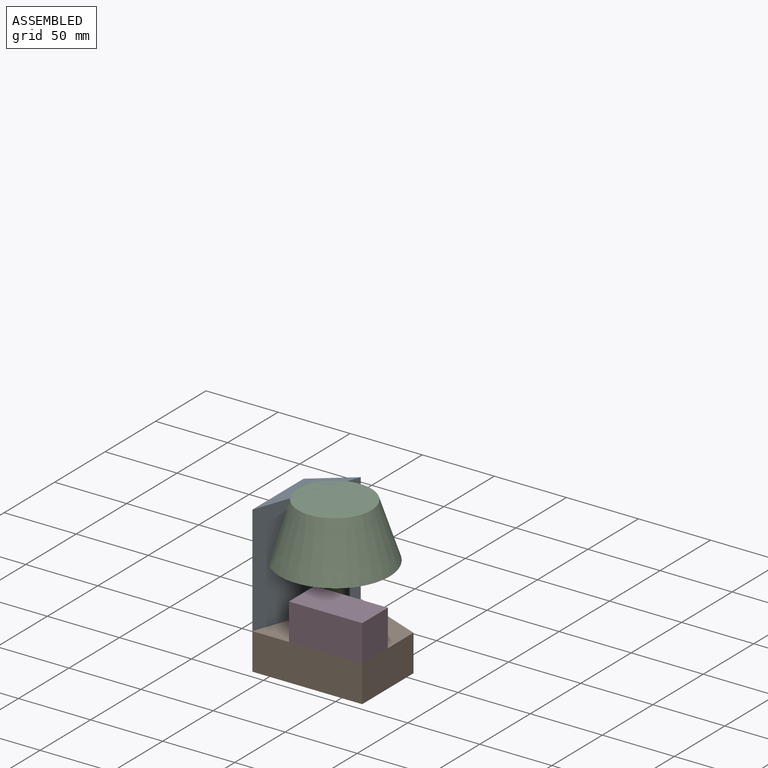
[diagram: assembled view]
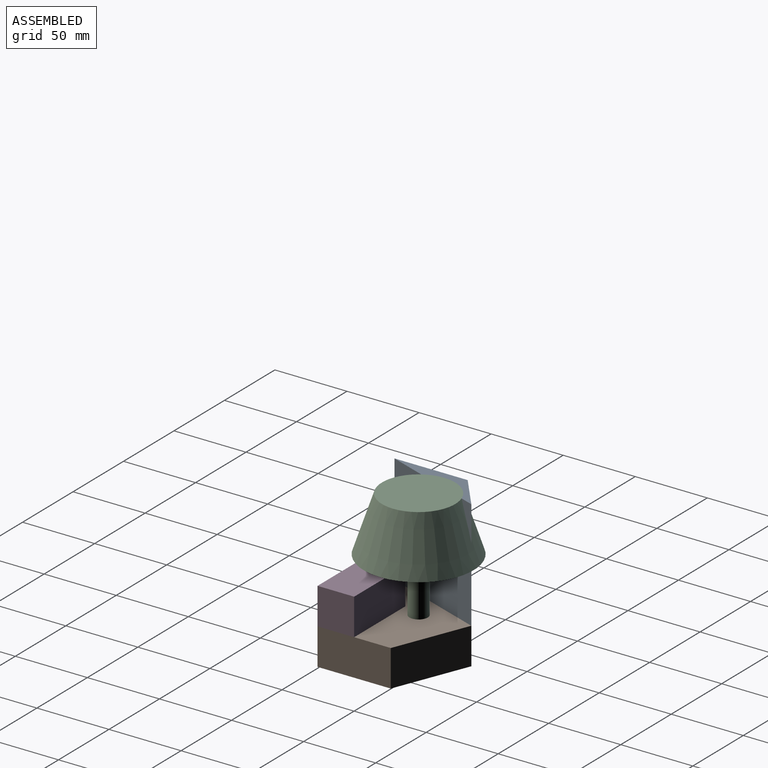
[diagram: assembled view, second angle]
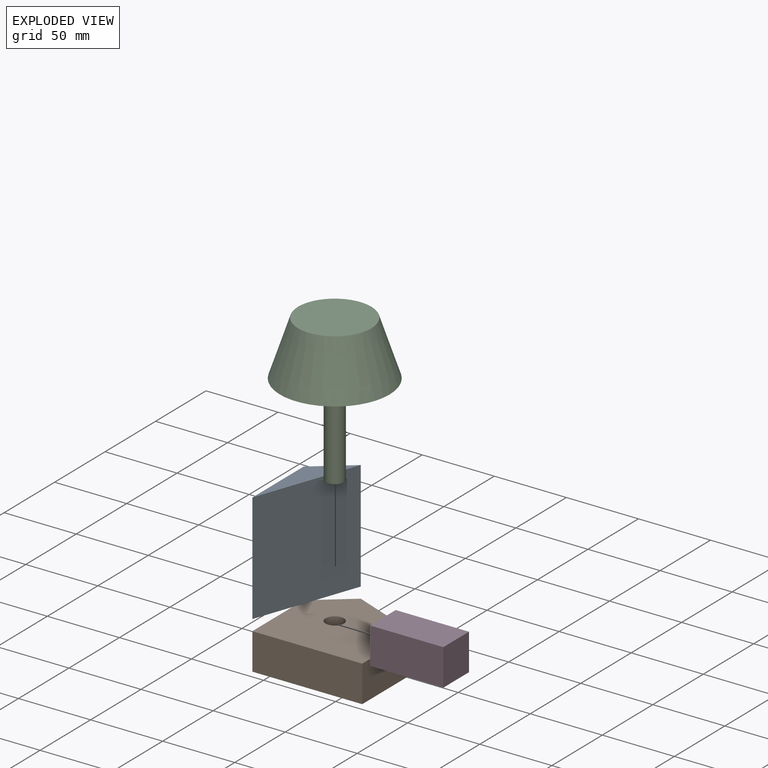
[diagram: exploded view]
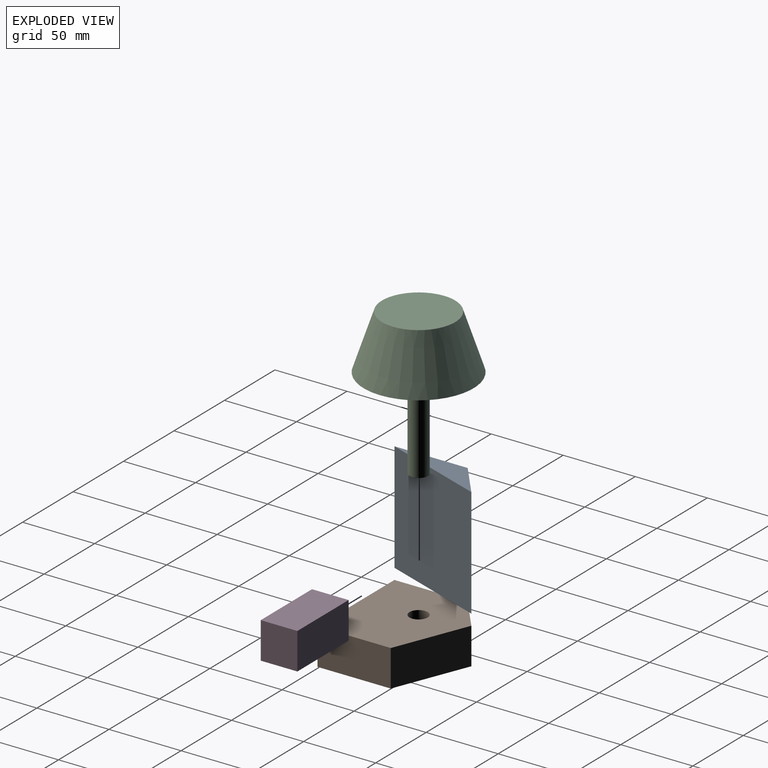
[diagram: exploded view, second angle]
ASSEMBLY  parts=4 mates=7
PART A: 5 faces, bbox 25.4x71.1x76.2 mm
  f0: plane 76.2x50.8mm, normal (-1,0,0), area 3871mm2, adj f1,f2,f3,f4
  f1: plane 76.2x71.12mm, normal (0.94,-0.34,0), area 5754.6mm2, adj f0,f2,f3,f4
  f2: plane 76.2x25.4mm, normal (-0.62,0.78,0), area 2478.6mm2, adj f0,f1,f3,f4
  f3: plane 71.12x25.4mm, normal (0,0,1), area 645.2mm2, adj f0,f1,f2
  f4: plane 71.12x25.4mm, normal (0,0,-1), area 645.2mm2, adj f0,f1,f2
PART B: 8 faces, bbox 76.2x71.1x25.4 mm
  f0: plane 50.8x25.4mm, normal (1,0,0), area 1290.3mm2, adj f1,f4,f5,f6
  f1: plane 50.8x25.4mm, normal (0.37,0.93,0), area 1389.7mm2, adj f0,f2,f5,f6
  f2: plane 25.4x25.4mm, normal (-0.62,0.78,0), area 826.2mm2, adj f1,f3,f5,f6
  f3: plane 50.8x25.4mm, normal (-1,0,0), area 1290.3mm2, adj f2,f4,f5,f6
  f4: plane 76.2x25.4mm, normal (0,-1,0), area 1935.5mm2, adj f0,f3,f5,f6
  f5: plane 76.2x71.12mm, normal (0,0,1), area 4518.5mm2, adj f0,f1,f2,f3,f4,f7
  f6: plane 76.2x71.12mm, normal (0,0,-1), area 4518.5mm2, adj f0,f1,f2,f3,f4,f7
  f7: cylinder r=6.35mm len=25.4mm, axis (0,0,1), area 1013.4mm2, adj f5,f6
PART C: 5 faces, bbox 76.2x76.2x101.6 mm
  f0: plane 12.7x12.7mm, normal (0,0,-1), area 126.7mm2, adj f1
  f1: cylinder r=6.35mm len=50.8mm, axis (0,0,-1), area 2026.8mm2, adj f0,f2
  f2: cone r=38.1mm half-angle=68.2deg, axis (0,0,1), area 4775.2mm2, adj f1,f3
  f3: cone r=25.4mm half-angle=18.4deg, axis (0,0,-1), area 8011.7mm2, adj f2,f4
  f4: plane 50.8x50.8mm, normal (0,0,1), area 2026.8mm2, adj f3
PART D: 6 faces, bbox 50.8x25.4x25.4 mm
  f0: plane 50.8x25.4mm, normal (0,0,-1), area 1290.3mm2, adj f1,f3,f4,f5
  f1: plane 25.4x25.4mm, normal (1,0,0), area 645.2mm2, adj f0,f2,f4,f5
  f2: plane 50.8x25.4mm, normal (0,0,1), area 1290.3mm2, adj f1,f3,f4,f5
  f3: plane 25.4x25.4mm, normal (-1,0,0), area 645.2mm2, adj f0,f2,f4,f5
  f4: plane 50.8x25.4mm, normal (0,-1,0), area 1290.3mm2, adj f0,f1,f2,f3
  f5: plane 50.8x25.4mm, normal (0,1,0), area 1290.3mm2, adj f0,f1,f2,f3
PLACE A t=(-8.98,1.74,-9.65)mm
PLACE B t=(-8.98,1.74,-9.65)mm fixed
PLACE C rot(axis=(0,0,-1),102.8deg) t=(21.5,39.84,-9.65)mm
PLACE D t=(16.42,27.14,15.75)mm
MATE planar B.f0 <-> D.f1  axis (1,0,0) through (67.22,27.14,3.05)mm
MATE planar B.f5 <-> A.f4  axis (0,0,1) through (29.12,1.74,15.75)mm
MATE planar B.f2 <-> A.f2  axis (-0.62,0.78,0) through (3.72,62.7,3.05)mm
MATE planar B.f4 <-> D.f4  axis (0,-1,0) through (29.12,1.74,-9.65)mm
MATE planar A.f0 <-> B.f3  axis (-1,0,0) through (-8.98,27.14,53.85)mm
MATE revolute B.f7 <-> C.f1  axis (0,0,1) through (21.5,39.84,15.75)mm
MATE planar B.f5 <-> D.f0  axis (0,0,1) through (67.22,27.14,15.75)mm
